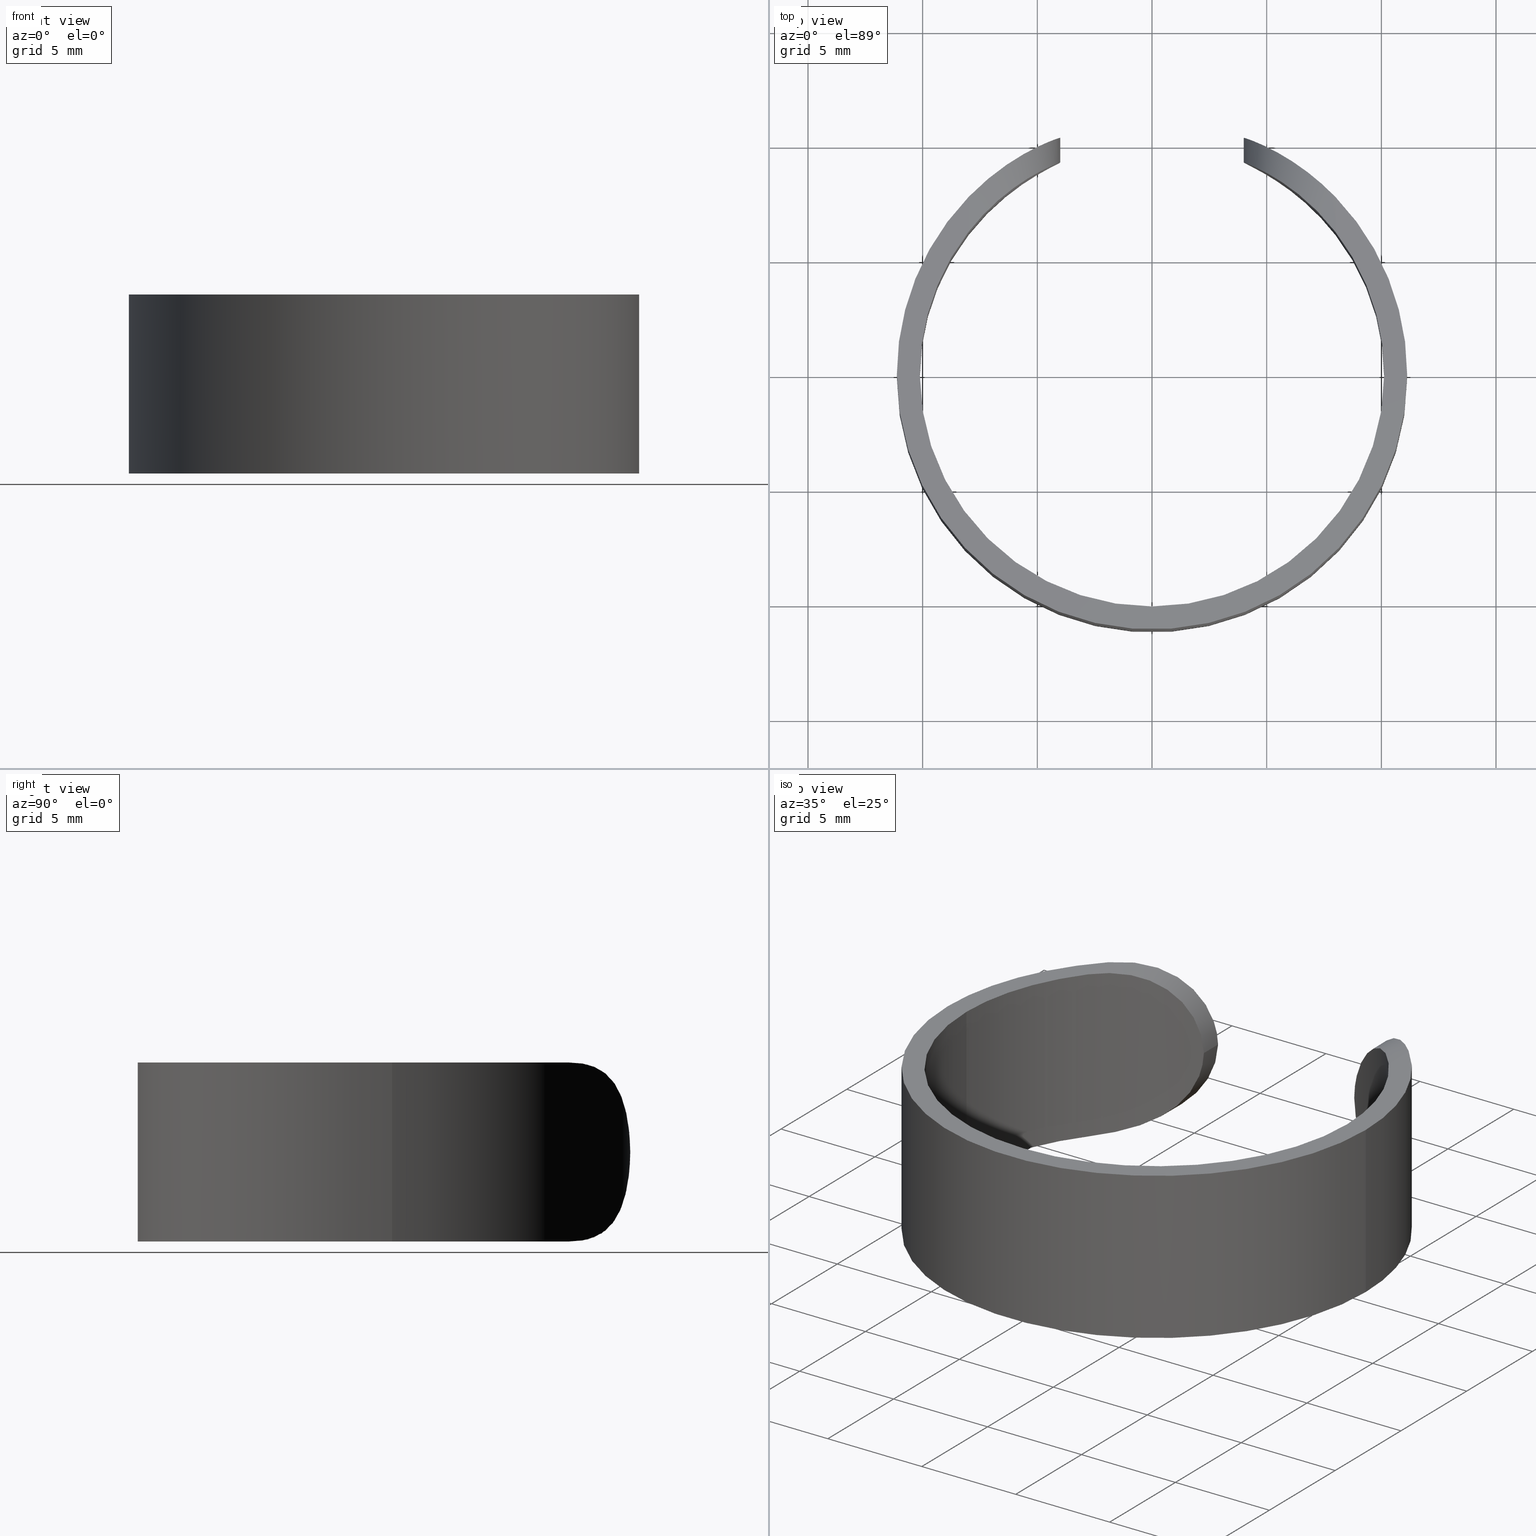
[diagram: canonical four-view strip — front | top / right | iso, engineering-drawing reading convention]
A machine part, canonical four-view strip (front | top / right | iso — engineering-drawing reading convention). The complete STEP part file that produces these views, byte-faithful:
ISO-10303-21;
HEADER;
FILE_DESCRIPTION (( 'STEP AP203' ),
    '1' );
FILE_NAME ('515004.STEP',
    '2019-09-26T07:36:46',
    ( '' ),
    ( '' ),
    'SwSTEP 2.0',
    'SolidWorks 2016',
    '' );
FILE_SCHEMA (( 'CONFIG_CONTROL_DESIGN' ));
ENDSEC;

DATA;
#1 = CC_DESIGN_PERSON_AND_ORGANIZATION_ASSIGNMENT ( #553, #156, ( #581 ) ) ;
#2 = APPROVAL_STATUS ( 'not_yet_approved' ) ;
#3 = DIRECTION ( 'NONE',  ( -8.033769701219899500E-016, 1.000000000000000000, 0.0000000000000000000 ) ) ;
#4 = CARTESIAN_POINT ( 'NONE',  ( 11.12500000000000000, 1.362419564051430300E-015, 7.799999999999999800 ) ) ;
#5 = EDGE_CURVE ( 'NONE', #54, #55, #590, .T. ) ;
#6 = VERTEX_POINT ( 'NONE', #142 ) ;
#7 = EDGE_LOOP ( 'NONE', ( #445, #454, #45, #204, #591 ) ) ;
#8 = CARTESIAN_POINT ( 'NONE',  ( -4.001250195373557100, 10.38054053862446600, 3.900000000000076700 ) ) ;
#9 = CARTESIAN_POINT ( 'NONE',  ( 0.0000000000000000000, 0.0000000000000000000, 7.799999999999999800 ) ) ;
#10 = CC_DESIGN_APPROVAL ( #311, ( #617 ) ) ;
#11 = APPROVAL_DATE_TIME ( #403, #311 ) ;
#12 = UNCERTAINTY_MEASURE_WITH_UNIT (LENGTH_MEASURE( 1.000000000000000100E-005 ), #473, 'distance_accuracy_value', 'NONE');
#13 = DIRECTION ( 'NONE',  ( 1.000000000000000000, 0.0000000000000000000, 0.0000000000000000000 ) ) ;
#14 = ORIENTED_EDGE ( 'NONE', *, *, #237, .T. ) ;
#15 = CARTESIAN_POINT ( 'NONE',  ( 0.0000000000000000000, 0.0000000000000000000, 0.0000000000000000000 ) ) ;
#16 = CARTESIAN_POINT ( 'NONE',  ( 4.001250195373559700, 9.300839847778425100, 3.899999999999998100 ) ) ;
#17 = DATE_AND_TIME ( #308, #290 ) ;
#18 = CARTESIAN_POINT ( 'NONE',  ( -6.276623606513959800, 9.189001011993795500, 0.3816190807649002000 ) ) ;
#19 = FACE_OUTER_BOUND ( 'NONE', #615, .T. ) ;
#20 = ORIENTED_EDGE ( 'NONE', *, *, #313, .F. ) ;
#21 = CARTESIAN_POINT ( 'NONE',  ( 7.815797301672330600, 6.443543238168709700, -2.879912020664621200E-017 ) ) ;
#22 = CC_DESIGN_PERSON_AND_ORGANIZATION_ASSIGNMENT ( #41, #307, ( #627 ) ) ;
#23 = CARTESIAN_POINT ( 'NONE',  ( 8.000000000000000000, 7.730823048033112600, 0.0000000000000000000 ) ) ;
#24 = EDGE_CURVE ( 'NONE', #573, #6, #172, .T. ) ;
#25 = CARTESIAN_POINT ( 'NONE',  ( 4.565672505174217300, 9.038348224417911000, 1.928768709548728000 ) ) ;
#26 = COORDINATED_UNIVERSAL_TIME_OFFSET ( 8, 0, .AHEAD. ) ;
#27 = DIRECTION ( 'NONE',  ( 1.000000000000000000, 8.033769701219899500E-016, 0.0000000000000000000 ) ) ;
#28 = CARTESIAN_POINT ( 'NONE',  ( 5.627252801659144800, 9.599729093109628400, 0.7685938398016604100 ) ) ;
#29 = PRODUCT_DEFINITION ( 'δ֪', '', #617, #349 ) ;
#30 = DIRECTION ( 'NONE',  ( 1.000000000000000000, 0.0000000000000000000, 0.0000000000000000000 ) ) ;
#31 = APPROVAL ( #105, 'δָ��' ) ;
#32 = PLANE ( 'NONE',  #610 ) ;
#33 = APPROVAL_PERSON_ORGANIZATION ( #148, #109, #388 ) ;
#34 = CYLINDRICAL_SURFACE ( 'NONE', #483, 11.12500000000000000 ) ;
#35 = VERTEX_POINT ( 'NONE', #208 ) ;
#36 = CARTESIAN_POINT ( 'NONE',  ( 4.008509415401781500, 10.37774242272197400, 4.190278046695688400 ) ) ;
#37 = CARTESIAN_POINT ( 'NONE',  ( 4.001250195373558900, 8.293559071075241800, 3.899999999999999900 ) ) ;
#38 = EDGE_CURVE ( 'NONE', #485, #72, #448, .T. ) ;
#39 = DIRECTION ( 'NONE',  ( -0.0000000000000000000, -0.0000000000000000000, -1.000000000000000000 ) ) ;
#40 = AXIS2_PLACEMENT_3D ( 'NONE', #558, #565, #27 ) ;
#41 = PERSON_AND_ORGANIZATION ( #394, #124 ) ;
#42 = PERSON_AND_ORGANIZATION_ROLE ( 'creator' ) ;
#43 = ORIENTED_EDGE ( 'NONE', *, *, #187, .F. ) ;
#44 = CARTESIAN_POINT ( 'NONE',  ( -5.916901258061794300, 8.220814913419124200, 7.223746396989543700 ) ) ;
#45 = ORIENTED_EDGE ( 'NONE', *, *, #226, .T. ) ;
#46 = ORIENTED_EDGE ( 'NONE', *, *, #82, .T. ) ;
#47 = MECHANICAL_CONTEXT ( 'NONE', #392, 'mechanical' ) ;
#48 = DIRECTION ( 'NONE',  ( -1.000000000000000000, 0.0000000000000000000, 0.0000000000000000000 ) ) ;
#49 = APPROVAL_STATUS ( 'not_yet_approved' ) ;
#50 = CARTESIAN_POINT ( 'NONE',  ( -4.001250195373557100, 10.38054053862446600, 3.900000000000076700 ) ) ;
#51 = DIRECTION ( 'NONE',  ( 1.000000000000000000, 0.0000000000000000000, 0.0000000000000000000 ) ) ;
#52 = APPROVAL_DATE_TIME ( #536, #566 ) ;
#53 = PERSON_AND_ORGANIZATION ( #394, #124 ) ;
#54 = VERTEX_POINT ( 'NONE', #106 ) ;
#55 = VERTEX_POINT ( 'NONE', #355 ) ;
#56 = DIRECTION ( 'NONE',  ( -0.0000000000000000000, -0.0000000000000000000, -1.000000000000000000 ) ) ;
#57 = DIRECTION ( 'NONE',  ( -0.0000000000000000000, -0.0000000000000000000, -1.000000000000000000 ) ) ;
#58 = CC_DESIGN_APPROVAL ( #31, ( #416 ) ) ;
#59 = CARTESIAN_POINT ( 'NONE',  ( 0.0000000000000000000, 0.0000000000000000000, 7.799999999999999800 ) ) ;
#60 = APPROVAL_DATE_TIME ( #68, #31 ) ;
#61 = CARTESIAN_POINT ( 'NONE',  ( 5.919382580235976300, 8.219010380731559100, 7.225211153489845600 ) ) ;
#62 = LINE ( 'NONE', #116, #97 ) ;
#63 = VERTEX_POINT ( 'NONE', #305 ) ;
#64 = ORIENTED_EDGE ( 'NONE', *, *, #119, .F. ) ;
#65 = CARTESIAN_POINT ( 'NONE',  ( -4.283673259212662300, 10.26811039051324700, 2.493776570852938200 ) ) ;
#66 = CC_DESIGN_PERSON_AND_ORGANIZATION_ASSIGNMENT ( #198, #42, ( #29 ) ) ;
#67 = DIRECTION ( 'NONE',  ( -0.0000000000000000000, -0.0000000000000000000, -1.000000000000000000 ) ) ;
#68 = DATE_AND_TIME ( #330, #218 ) ;
#69 = CIRCLE ( 'NONE', #636, 11.12500000000000000 ) ;
#70 = CARTESIAN_POINT ( 'NONE',  ( 0.0000000000000000000, 0.0000000000000000000, 7.799999999999999800 ) ) ;
#71 = AXIS2_PLACEMENT_3D ( 'NONE', #340, #39, #382 ) ;
#72 = VERTEX_POINT ( 'NONE', #633 ) ;
#73 = CARTESIAN_POINT ( 'NONE',  ( 4.008790584810824100, 9.297595948818459600, 4.201521307890643300 ) ) ;
#74 = EDGE_CURVE ( 'NONE', #493, #63, #141, .T. ) ;
#75 = CARTESIAN_POINT ( 'NONE',  ( 4.001250195373559700, 9.300839847778425100, 3.899999999999998100 ) ) ;
#76 = CARTESIAN_POINT ( 'NONE',  ( 5.217142879510171300, 9.828641459004009200, 1.114238179207921700 ) ) ;
#77 = COORDINATED_UNIVERSAL_TIME_OFFSET ( 8, 0, .AHEAD. ) ;
#78 = FACE_OUTER_BOUND ( 'NONE', #7, .T. ) ;
#79 = ORIENTED_EDGE ( 'NONE', *, *, #586, .F. ) ;
#80 = AXIS2_PLACEMENT_3D ( 'NONE', #15, #367, #498 ) ;
#81 = DIRECTION ( 'NONE',  ( -1.000000000000000000, 0.0000000000000000000, 0.0000000000000000000 ) ) ;
#82 = EDGE_CURVE ( 'NONE', #354, #493, #334, .T. ) ;
#83 = DIRECTION ( 'NONE',  ( -0.0000000000000000000, -0.0000000000000000000, -1.000000000000000000 ) ) ;
#84 = LOCAL_TIME ( 15, 36, 46.00000000000000000, #104 ) ;
#85 = ADVANCED_FACE ( 'NONE', ( #78 ), #250, .F. ) ;
#86 = CARTESIAN_POINT ( 'NONE',  ( -7.999999999999998200, 6.206095793653205700, 0.0000000000000000000 ) ) ;
#87 = ORIENTED_EDGE ( 'NONE', *, *, #155, .T. ) ;
#88 = CARTESIAN_POINT ( 'NONE',  ( -7.227798416163882000, 7.114393489978646700, 0.04915150761486868800 ) ) ;
#89 = ADVANCED_FACE ( 'NONE', ( #213 ), #235, .T. ) ;
#90 = CARTESIAN_POINT ( 'NONE',  ( 5.026643687882589100, 9.926469475605966200, 6.490007754328753500 ) ) ;
#91 = CARTESIAN_POINT ( 'NONE',  ( -4.159431567750726100, 9.231270712618281100, 4.927905870786189800 ) ) ;
#92 = ADVANCED_FACE ( 'NONE', ( #381 ), #326, .T. ) ;
#93 = AXIS2_PLACEMENT_3D ( 'NONE', #551, #169, #118 ) ;
#94 = CARTESIAN_POINT ( 'NONE',  ( -5.840785774799472000, 9.472006847375045200, 7.176447812892963200 ) ) ;
#95 = DIRECTION ( 'NONE',  ( -0.0000000000000000000, -0.0000000000000000000, -1.000000000000000000 ) ) ;
#96 = CALENDAR_DATE ( 2019, 26, 9 ) ;
#97 = VECTOR ( 'NONE', #362, 1000.000000000000000 ) ;
#98 = CARTESIAN_POINT ( 'NONE',  ( -5.919382580235975400, 8.219010380731557300, 0.5747888465101546100 ) ) ;
#99 = ORIENTED_EDGE ( 'NONE', *, *, #522, .F. ) ;
#100 = CARTESIAN_POINT ( 'NONE',  ( 0.0000000000000000000, 0.0000000000000000000, 0.0000000000000000000 ) ) ;
#101 = PRODUCT_DEFINITION_SHAPE ( 'NONE', 'NONE',  #581 ) ;
#102 = ADVANCED_FACE ( 'NONE', ( #580 ), #572, .T. ) ;
#103 = MECHANICAL_CONTEXT ( 'NONE', #538, 'mechanical' ) ;
#104 = COORDINATED_UNIVERSAL_TIME_OFFSET ( 8, 0, .AHEAD. ) ;
#105 = APPROVAL_STATUS ( 'not_yet_approved' ) ;
#106 = CARTESIAN_POINT ( 'NONE',  ( 10.12499999999999800, 1.239954884136695000E-015, 7.799999999999999800 ) ) ;
#107 = ORIENTED_EDGE ( 'NONE', *, *, #575, .T. ) ;
#108 = APPLICATION_PROTOCOL_DEFINITION ( 'international standard', 'config_control_design', 1994, #392 ) ;
#109 = APPROVAL ( #207, 'δָ��' ) ;
#110 = PERSON_AND_ORGANIZATION_ROLE ( 'design_supplier' ) ;
#111 = DIRECTION ( 'NONE',  ( 0.0000000000000000000, 0.0000000000000000000, 1.000000000000000000 ) ) ;
#112 = DIRECTION ( 'NONE',  ( 1.000000000000000000, 0.0000000000000000000, -0.0000000000000000000 ) ) ;
#113 = CIRCLE ( 'NONE', #139, 11.12500000000000000 ) ;
#114 = ORIENTED_EDGE ( 'NONE', *, *, #472, .F. ) ;
#115 = DIRECTION ( 'NONE',  ( -0.0000000000000000000, 1.000000000000000000, -0.0000000000000000000 ) ) ;
#116 = CARTESIAN_POINT ( 'NONE',  ( -8.000000000000000000, 10.38102234849727700, 7.799999999999999800 ) ) ;
#117 = CC_DESIGN_PERSON_AND_ORGANIZATION_ASSIGNMENT ( #53, #393, ( #589 ) ) ;
#118 = DIRECTION ( 'NONE',  ( 1.000000000000000000, 0.0000000000000000000, 0.0000000000000000000 ) ) ;
#119 = EDGE_CURVE ( 'NONE', #637, #404, #69, .T. ) ;
#120 = SHAPE_DEFINITION_REPRESENTATION ( #562, #320 ) ;
#121 = ORIENTED_EDGE ( 'NONE', *, *, #82, .F. ) ;
#122 = ORIENTED_EDGE ( 'NONE', *, *, #487, .F. ) ;
#123 = CARTESIAN_POINT ( 'NONE',  ( -5.026643687882530500, 9.926469475606001700, 1.309992245671312000 ) ) ;
#124 = ORGANIZATION ( 'δָ��', 'δָ��', '' ) ;
#125 = EDGE_LOOP ( 'NONE', ( #344, #433, #440, #14, #537, #87, #221, #516 ) ) ;
#126 = DIRECTION ( 'NONE',  ( 8.033769701219899500E-016, -1.000000000000000000, -0.0000000000000000000 ) ) ;
#127 = AXIS2_PLACEMENT_3D ( 'NONE', #241, #83, #368 ) ;
#128 = CARTESIAN_POINT ( 'NONE',  ( 5.028166002111222900, 9.925670074801539400, 1.308577872979077600 ) ) ;
#129 = CARTESIAN_POINT ( 'NONE',  ( 5.840785774799425800, 9.472006847375073600, 0.6235521871070643900 ) ) ;
#130 = MANIFOLD_SOLID_BREP ( 'Բ��1', #418 ) ;
#131 = COORDINATED_UNIVERSAL_TIME_OFFSET ( 8, 0, .AHEAD. ) ;
#132 = CYLINDRICAL_SURFACE ( 'NONE', #517, 11.12500000000000000 ) ;
#133 = ORIENTED_EDGE ( 'NONE', *, *, #237, .F. ) ;
#134 = VERTEX_POINT ( 'NONE', #543 ) ;
#135 = CARTESIAN_POINT ( 'NONE',  ( 4.308830892505967300, 9.162581688671776800, 2.451726205542819900 ) ) ;
#136 = ADVANCED_FACE ( 'NONE', ( #431 ), #561, .F. ) ;
#137 = CARTESIAN_POINT ( 'NONE',  ( -4.001250195373558000, 9.300839847778426900, 3.899999999999997200 ) ) ;
#138 = CARTESIAN_POINT ( 'NONE',  ( 10.12499999999999800, 1.239954884136695000E-015, 7.799999999999999800 ) ) ;
#139 = AXIS2_PLACEMENT_3D ( 'NONE', #406, #321, #13 ) ;
#140 = CARTESIAN_POINT ( 'NONE',  ( -5.701258363416674700, 8.370991384762199100, 0.7154664408517542600 ) ) ;
#141 = CIRCLE ( 'NONE', #215, 10.12499999999999800 ) ;
#142 = CARTESIAN_POINT ( 'NONE',  ( -7.999999999999996400, 6.206095793653207500, 7.799999999999999800 ) ) ;
#143 = CARTESIAN_POINT ( 'NONE',  ( 5.215562959815326100, 9.829430072311772900, 6.684043364736873500 ) ) ;
#144 = CARTESIAN_POINT ( 'NONE',  ( 8.000000000000000000, 10.38102234849728100, 4.000000000000000000 ) ) ;
#145 = CARTESIAN_POINT ( 'NONE',  ( -7.008667805379441300, 7.312893272198249600, 7.681776929039928700 ) ) ;
#146 = AXIS2_PLACEMENT_3D ( 'NONE', #281, #619, #415 ) ;
#147 = SECURITY_CLASSIFICATION_LEVEL ( 'unclassified' ) ;
#148 = PERSON_AND_ORGANIZATION ( #394, #124 ) ;
#149 = PERSON_AND_ORGANIZATION ( #394, #124 ) ;
#150 = ORIENTED_EDGE ( 'NONE', *, *, #187, .T. ) ;
#151 = DIRECTION ( 'NONE',  ( 1.000000000000000000, 0.0000000000000000000, 0.0000000000000000000 ) ) ;
#152 = VERTEX_POINT ( 'NONE', #8 ) ;
#153 = CARTESIAN_POINT ( 'NONE',  ( -6.578328444203196800, 7.702300130280032200, 7.545635010830095800 ) ) ;
#154 = DESIGN_CONTEXT ( 'detailed design', #432, 'design' ) ;
#155 = EDGE_CURVE ( 'NONE', #54, #354, #176, .T. ) ;
#156 = PERSON_AND_ORGANIZATION_ROLE ( 'creator' ) ;
#157 = DATE_TIME_ROLE ( 'creation_date' ) ;
#158 = CARTESIAN_POINT ( 'NONE',  ( 5.086537306542194200, 8.756952909420581600, 6.555087516793129500 ) ) ;
#159 = PERSON_AND_ORGANIZATION ( #394, #124 ) ;
#160 = APPROVAL_ROLE ( '' ) ;
#161 = CIRCLE ( 'NONE', #347, 10.12499999999999800 ) ;
#162 = ORIENTED_EDGE ( 'NONE', *, *, #38, .T. ) ;
#163 = AXIS2_PLACEMENT_3D ( 'NONE', #144, #470, #482 ) ;
#164 = CARTESIAN_POINT ( 'NONE',  ( 7.227798416163886400, 7.114393489978648500, 7.750848492385133100 ) ) ;
#165 = DIRECTION ( 'NONE',  ( -0.0000000000000000000, -0.0000000000000000000, -1.000000000000000000 ) ) ;
#166 = APPROVAL_PERSON_ORGANIZATION ( #620, #566, #525 ) ;
#167 = ORIENTED_EDGE ( 'NONE', *, *, #203, .T. ) ;
#168 = CARTESIAN_POINT ( 'NONE',  ( -5.622090501069597400, 9.602702272383940100, 0.7725641485334301400 ) ) ;
#169 = DIRECTION ( 'NONE',  ( 0.0000000000000000000, 0.0000000000000000000, 1.000000000000000000 ) ) ;
#170 = CARTESIAN_POINT ( 'NONE',  ( -4.532237980768703000, 10.16084477143202000, 1.986440951752483700 ) ) ;
#171 = COORDINATED_UNIVERSAL_TIME_OFFSET ( 8, 0, .AHEAD. ) ;
#172 = B_SPLINE_CURVE_WITH_KNOTS ( 'NONE', 3,
 ( #626, #339, #379, #91, #296, #465, #520, #247, #640, #390, #206, #300, #44, #386, #153, #145, #585, #527, #256, #201 ),
 .UNSPECIFIED., .F., .F.,
 ( 4, 2, 2, 2, 2, 2, 2, 2, 2, 4 ),
 ( 9.880161927173211100E-005, 0.0009922241704492529000, 0.001438935446038013700, 0.001885646721626774500, 0.002779069272804298100, 0.003672491823981821500, 0.004565914375159345300, 0.005459336926336869600, 0.006352759477514394700, 0.007246182028691920700 ),
 .UNSPECIFIED. ) ;
#173 = CARTESIAN_POINT ( 'NONE',  ( -4.046888289149049600, 10.36309599771423600, 3.325127572760569400 ) ) ;
#174 = EDGE_CURVE ( 'NONE', #6, #637, #62, .T. ) ;
#175 = CIRCLE ( 'NONE', #80, 11.12500000000000000 ) ;
#176 = CIRCLE ( 'NONE', #282, 10.12499999999999800 ) ;
#177 = VERTEX_POINT ( 'NONE', #314 ) ;
#178 = CARTESIAN_POINT ( 'NONE',  ( 4.198749070276265100, 9.213726947612437700, 5.080962103234990800 ) ) ;
#179 = DIRECTION ( 'NONE',  ( 0.0000000000000000000, 0.0000000000000000000, 1.000000000000000000 ) ) ;
#180 = CARTESIAN_POINT ( 'NONE',  ( 4.773003964334876900, 10.04952719540044200, 1.632430744411491400 ) ) ;
#181 = ORIENTED_EDGE ( 'NONE', *, *, #226, .F. ) ;
#182 = CARTESIAN_POINT ( 'NONE',  ( 7.620885438308254000, 6.672744582655003100, 0.01279559811741327400 ) ) ;
#183 = CC_DESIGN_PERSON_AND_ORGANIZATION_ASSIGNMENT ( #422, #435, ( #617 ) ) ;
#184 = ORIENTED_EDGE ( 'NONE', *, *, #631, .F. ) ;
#185 = CARTESIAN_POINT ( 'NONE',  ( 6.355170468924960400, 7.886908560979494900, 0.3454308635261984000 ) ) ;
#186 = ADVANCED_FACE ( 'NONE', ( #192 ), #417, .F. ) ;
#187 = EDGE_CURVE ( 'NONE', #202, #231, #599, .T. ) ;
#188 = CARTESIAN_POINT ( 'NONE',  ( 7.008667805379442200, 7.312893272198247800, 0.1182230709600730300 ) ) ;
#189 = CARTESIAN_POINT ( 'NONE',  ( 4.183917640690046000, 10.30853513641075200, 5.032907303278858700 ) ) ;
#190 = PERSON_AND_ORGANIZATION ( #394, #124 ) ;
#191 = CALENDAR_DATE ( 2019, 26, 9 ) ;
#192 = FACE_OUTER_BOUND ( 'NONE', #343, .T. ) ;
#193 = CARTESIAN_POINT ( 'NONE',  ( -4.568240781612600700, 9.037061119902722000, 1.924425472663032300 ) ) ;
#194 = ADVANCED_FACE ( 'NONE', ( #554 ), #401, .F. ) ;
#195 = DIRECTION ( 'NONE',  ( 1.000000000000000000, 0.0000000000000000000, -0.0000000000000000000 ) ) ;
#196 = AXIS2_PLACEMENT_3D ( 'NONE', #402, #602, #112 ) ;
#197 = CARTESIAN_POINT ( 'NONE',  ( 4.683710545691555500, 10.09280924912606600, 6.053711102248882100 ) ) ;
#198 = PERSON_AND_ORGANIZATION ( #394, #124 ) ;
#199 = CARTESIAN_POINT ( 'NONE',  ( -7.999999999999998200, 7.730823048033115300, 7.799999999999999800 ) ) ;
#200 = ORIENTED_EDGE ( 'NONE', *, *, #586, .T. ) ;
#201 = CARTESIAN_POINT ( 'NONE',  ( -7.999999999999996400, 6.206095793653207500, 7.799999999999999800 ) ) ;
#202 = VERTEX_POINT ( 'NONE', #480 ) ;
#203 = EDGE_CURVE ( 'NONE', #555, #177, #302, .T. ) ;
#204 = ORIENTED_EDGE ( 'NONE', *, *, #453, .T. ) ;
#205 = DATE_TIME_ROLE ( 'creation_date' ) ;
#206 = CARTESIAN_POINT ( 'NONE',  ( -5.280293115881816500, 8.642706744832672400, 6.745452536255834600 ) ) ;
#207 = APPROVAL_STATUS ( 'not_yet_approved' ) ;
#208 = CARTESIAN_POINT ( 'NONE',  ( 8.000000000000000000, 6.206095793653203100, 7.799999999999999800 ) ) ;
#209 = PERSON_AND_ORGANIZATION_ROLE ( 'classification_officer' ) ;
#210 = CARTESIAN_POINT ( 'NONE',  ( 0.0000000000000000000, 0.0000000000000000000, 7.799999999999999800 ) ) ;
#211 = PERSON_AND_ORGANIZATION ( #394, #124 ) ;
#212 = VECTOR ( 'NONE', #126, 1000.000000000000000 ) ;
#213 = FACE_OUTER_BOUND ( 'NONE', #318, .T. ) ;
#214 = CARTESIAN_POINT ( 'NONE',  ( -4.047803546566052000, 10.36274536119001900, 4.480841623251954800 ) ) ;
#215 = AXIS2_PLACEMENT_3D ( 'NONE', #252, #95, #428 ) ;
#216 = PERSON_AND_ORGANIZATION_ROLE ( 'design_owner' ) ;
#217 = DIRECTION ( 'NONE',  ( -1.000000000000000000, 0.0000000000000000000, 0.0000000000000000000 ) ) ;
#218 = LOCAL_TIME ( 15, 36, 46.00000000000000000, #475 ) ;
#219 = CARTESIAN_POINT ( 'NONE',  ( 8.000000000000000000, 0.0000000000000000000, 3.799999999999999400 ) ) ;
#220 = EDGE_LOOP ( 'NONE', ( #621, #114, #424, #266 ) ) ;
#221 = ORIENTED_EDGE ( 'NONE', *, *, #443, .T. ) ;
#222 = PRODUCT ( '515004', '515004', '', ( #103 ) ) ;
#223 = CARTESIAN_POINT ( 'NONE',  ( 5.701258363416676500, 8.370991384762202600, 7.084533559148247200 ) ) ;
#224 = CARTESIAN_POINT ( 'NONE',  ( -4.183917640690002500, 10.30853513641077200, 2.767092696721270300 ) ) ;
#225 = CARTESIAN_POINT ( 'NONE',  ( -5.215562959815268400, 9.829430072311806700, 1.115956635263181800 ) ) ;
#226 = EDGE_CURVE ( 'NONE', #35, #485, #481, .T. ) ;
#227 = CALENDAR_DATE ( 2019, 26, 9 ) ;
#228 = LINE ( 'NONE', #509, #212 ) ;
#229 = ORIENTED_EDGE ( 'NONE', *, *, #575, .F. ) ;
#230 = DIRECTION ( 'NONE',  ( 1.000000000000000000, 0.0000000000000000000, 0.0000000000000000000 ) ) ;
#231 = VERTEX_POINT ( 'NONE', #494 ) ;
#232 = CARTESIAN_POINT ( 'NONE',  ( 5.916901258061797900, 8.220814913419120600, 0.5762536030104558100 ) ) ;
#233 = CC_DESIGN_DATE_AND_TIME_ASSIGNMENT ( #350, #534, ( #627 ) ) ;
#234 = LINE ( 'NONE', #299, #613 ) ;
#235 = CYLINDRICAL_SURFACE ( 'NONE', #163, 4.000000000000000000 ) ;
#236 = CARTESIAN_POINT ( 'NONE',  ( 4.692642961623963800, 10.08719781645910500, 1.745839078344228600 ) ) ;
#237 = EDGE_CURVE ( 'NONE', #134, #35, #248, .T. ) ;
#238 = CARTESIAN_POINT ( 'NONE',  ( 7.596791848386501100, 8.148070369937434200, -7.623296525288703100E-018 ) ) ;
#239 = CARTESIAN_POINT ( 'NONE',  ( 4.001250195373561500, 10.38054053862432500, 3.900000000000077600 ) ) ;
#240 = FACE_OUTER_BOUND ( 'NONE', #125, .T. ) ;
#241 = CARTESIAN_POINT ( 'NONE',  ( 0.0000000000000000000, 0.0000000000000000000, 7.799999999999999800 ) ) ;
#242 = ORIENTED_EDGE ( 'NONE', *, *, #472, .T. ) ;
#243 = CARTESIAN_POINT ( 'NONE',  ( 4.532237980768758900, 10.16084477143199500, 5.813559048247612700 ) ) ;
#244 = CC_DESIGN_APPROVAL ( #109, ( #29 ) ) ;
#245 = CARTESIAN_POINT ( 'NONE',  ( -6.356711401953806900, 7.885647844156165900, 0.3447786829046706700 ) ) ;
#246 = CARTESIAN_POINT ( 'NONE',  ( -7.596791848386507300, 8.148070369937428800, 7.800000000000000700 ) ) ;
#247 = CARTESIAN_POINT ( 'NONE',  ( -4.565672505174214600, 9.038348224417907400, 5.871231290451265600 ) ) ;
#248 = LINE ( 'NONE', #541, #365 ) ;
#249 = EDGE_CURVE ( 'NONE', #152, #539, #358, .T. ) ;
#250 = CYLINDRICAL_SURFACE ( 'NONE', #596, 10.12499999999999800 ) ;
#251 = CARTESIAN_POINT ( 'NONE',  ( 0.0000000000000000000, 0.0000000000000000000, 7.799999999999999800 ) ) ;
#252 = CARTESIAN_POINT ( 'NONE',  ( 0.0000000000000000000, 0.0000000000000000000, 0.0000000000000000000 ) ) ;
#253 = CARTESIAN_POINT ( 'NONE',  ( 6.276623606514001500, 9.189001011993763500, 7.418380919235120000 ) ) ;
#254 = CC_DESIGN_PERSON_AND_ORGANIZATION_ASSIGNMENT ( #410, #638, ( #617 ) ) ;
#255 = CARTESIAN_POINT ( 'NONE',  ( -5.028166002111277100, 9.925670074801511000, 6.491422127020981300 ) ) ;
#256 = CARTESIAN_POINT ( 'NONE',  ( -7.815797301672327000, 6.443543238168709700, 7.799999999999999800 ) ) ;
#257 = DIRECTION ( 'NONE',  ( 1.000000000000000000, 0.0000000000000000000, 0.0000000000000000000 ) ) ;
#258 = EDGE_CURVE ( 'NONE', #202, #55, #161, .T. ) ;
#259 = ORIENTED_EDGE ( 'NONE', *, *, #5, .T. ) ;
#260 = APPROVAL_STATUS ( 'not_yet_approved' ) ;
#261 = CARTESIAN_POINT ( 'NONE',  ( -5.627252801659191800, 9.599729093109600000, 7.031406160198375100 ) ) ;
#262 = DIRECTION ( 'NONE',  ( 0.0000000000000000000, 0.0000000000000000000, 1.000000000000000000 ) ) ;
#263 = APPLICATION_PROTOCOL_DEFINITION ( 'international standard', 'config_control_design', 1994, #538 ) ;
#264 = DIRECTION ( 'NONE',  ( -0.0000000000000000000, 1.000000000000000000, 0.0000000000000000000 ) ) ;
#265 = APPROVAL_DATE_TIME ( #380, #384 ) ;
#266 = ORIENTED_EDGE ( 'NONE', *, *, #269, .T. ) ;
#267 = CC_DESIGN_APPROVAL ( #566, ( #627 ) ) ;
#268 = CARTESIAN_POINT ( 'NONE',  ( 6.356711401953806000, 7.885647844156164200, 7.455221317095326800 ) ) ;
#269 = EDGE_CURVE ( 'NONE', #152, #573, #276, .T. ) ;
#270 = LOCAL_TIME ( 15, 36, 46.00000000000000000, #77 ) ;
#271 = CARTESIAN_POINT ( 'NONE',  ( 4.001250195373559700, 9.300839847778425100, 3.899999999999998100 ) ) ;
#272 = EDGE_LOOP ( 'NONE', ( #547, #167, #310, #600, #107 ) ) ;
#273 = DIRECTION ( 'NONE',  ( 8.033769701219899500E-016, -1.000000000000000000, 0.0000000000000000000 ) ) ;
#274 = CC_DESIGN_PERSON_AND_ORGANIZATION_ASSIGNMENT ( #570, #216, ( #222 ) ) ;
#275 = LOCAL_TIME ( 15, 36, 46.00000000000000000, #26 ) ;
#276 = LINE ( 'NONE', #278, #607 ) ;
#277 = ORIENTED_EDGE ( 'NONE', *, *, #24, .F. ) ;
#278 = CARTESIAN_POINT ( 'NONE',  ( -4.001250195373557100, 8.293559071075245400, 3.899999999999999900 ) ) ;
#279 = EDGE_CURVE ( 'NONE', #404, #555, #460, .T. ) ;
#280 = CARTESIAN_POINT ( 'NONE',  ( 0.0000000000000000000, 0.0000000000000000000, 7.799999999999999800 ) ) ;
#281 = CARTESIAN_POINT ( 'NONE',  ( 0.0000000000000000000, 0.0000000000000000000, 0.0000000000000000000 ) ) ;
#282 = AXIS2_PLACEMENT_3D ( 'NONE', #59, #57, #395 ) ;
#283 = DATE_AND_TIME ( #430, #579 ) ;
#284 = CIRCLE ( 'NONE', #426, 11.12500000000000000 ) ;
#285 = CARTESIAN_POINT ( 'NONE',  ( 0.0000000000000000000, 0.0000000000000000000, 7.799999999999999800 ) ) ;
#286 = EDGE_CURVE ( 'NONE', #177, #231, #175, .T. ) ;
#287 = CARTESIAN_POINT ( 'NONE',  ( 7.217641228604097000, 7.106973351879466000, 0.07196721677396238100 ) ) ;
#288 = ADVANCED_FACE ( 'NONE', ( #292 ), #34, .T. ) ;
#289 = CARTESIAN_POINT ( 'NONE',  ( 8.000000000000000000, 7.730823048033112600, 7.799999999999999800 ) ) ;
#290 = LOCAL_TIME ( 15, 36, 46.00000000000000000, #605 ) ;
#291 = ADVANCED_FACE ( 'NONE', ( #499 ), #341, .T. ) ;
#292 = FACE_OUTER_BOUND ( 'NONE', #272, .T. ) ;
#293 = CARTESIAN_POINT ( 'NONE',  ( 11.12500000000000000, 1.362419564051430300E-015, 7.799999999999999800 ) ) ;
#294 = APPROVAL ( #260, 'δָ��' ) ;
#295 = CARTESIAN_POINT ( 'NONE',  ( -6.504876999262192400, 9.029378816659026100, 7.517432757502495700 ) ) ;
#296 = CARTESIAN_POINT ( 'NONE',  ( -4.204556946386481400, 9.210897228087516100, 5.071413838802312700 ) ) ;
#297 = CC_DESIGN_SECURITY_CLASSIFICATION ( #627, ( #416 ) ) ;
#298 = CARTESIAN_POINT ( 'NONE',  ( 4.001250195373561500, 10.38054053862432500, 3.900000000000077600 ) ) ;
#299 = CARTESIAN_POINT ( 'NONE',  ( -11.12500000000000000, 0.0000000000000000000, 7.799999999999999800 ) ) ;
#300 = CARTESIAN_POINT ( 'NONE',  ( -5.699572633629093100, 8.372141127620301000, 7.083371759473420700 ) ) ;
#301 = CALENDAR_DATE ( 2019, 26, 9 ) ;
#302 = LINE ( 'NONE', #4, #526 ) ;
#303 = CARTESIAN_POINT ( 'NONE',  ( -5.217142879510224600, 9.828641459003979000, 6.685761820792132300 ) ) ;
#304 = VERTEX_POINT ( 'NONE', #446 ) ;
#305 = CARTESIAN_POINT ( 'NONE',  ( -7.999999999999998200, 6.206095793653205700, 0.0000000000000000000 ) ) ;
#306 = PERSON_AND_ORGANIZATION_ROLE ( 'creator' ) ;
#307 = PERSON_AND_ORGANIZATION_ROLE ( 'classification_officer' ) ;
#308 = CALENDAR_DATE ( 2019, 26, 9 ) ;
#309 =( NAMED_UNIT ( * ) PLANE_ANGLE_UNIT ( ) SI_UNIT ( $, .RADIAN. ) );
#310 = ORIENTED_EDGE ( 'NONE', *, *, #286, .T. ) ;
#311 = APPROVAL ( #594, 'δָ��' ) ;
#312 = DIRECTION ( 'NONE',  ( -1.000000000000000000, 0.0000000000000000000, 0.0000000000000000000 ) ) ;
#313 = EDGE_CURVE ( 'NONE', #304, #177, #113, .T. ) ;
#314 = CARTESIAN_POINT ( 'NONE',  ( 11.12500000000000000, 1.362419564051430300E-015, 0.0000000000000000000 ) ) ;
#315 = PERSON_AND_ORGANIZATION ( #394, #124 ) ;
#316 = ORIENTED_EDGE ( 'NONE', *, *, #38, .F. ) ;
#317 = B_SPLINE_CURVE_WITH_KNOTS ( 'NONE', 3,
 ( #23, #238, #504, #457, #455, #129, #28, #76, #128, #180, #236, #559, #331, #372, #564, #507, #618, #239 ),
 .UNSPECIFIED., .F., .F.,
 ( 4, 2, 2, 2, 2, 2, 2, 2, 4 ),
 ( 0.0000000000000000000, 0.001714558512397795300, 0.002571837768596695800, 0.003429117024795596300, 0.004286396280994495500, 0.004715035909093946200, 0.005143675537193396000, 0.006000954793392295600, 0.006858234049591197000 ),
 .UNSPECIFIED. ) ;
#318 = EDGE_LOOP ( 'NONE', ( #122, #43, #508, #162 ) ) ;
#319 =( GEOMETRIC_REPRESENTATION_CONTEXT ( 3 ) GLOBAL_UNCERTAINTY_ASSIGNED_CONTEXT ( ( #12 ) ) GLOBAL_UNIT_ASSIGNED_CONTEXT ( ( #473, #309, #345 ) ) REPRESENTATION_CONTEXT ( 'NONE', 'WORKASPACE' ) );
#320 = ADVANCED_BREP_SHAPE_REPRESENTATION ( '515004', ( #130, #529 ), #319 ) ;
#321 = DIRECTION ( 'NONE',  ( 0.0000000000000000000, 0.0000000000000000000, 1.000000000000000000 ) ) ;
#322 = CARTESIAN_POINT ( 'NONE',  ( 0.0000000000000000000, 0.0000000000000000000, 7.799999999999999800 ) ) ;
#323 = CALENDAR_DATE ( 2019, 26, 9 ) ;
#324 = CARTESIAN_POINT ( 'NONE',  ( -6.501887589211032800, 9.031561767834963600, 0.2837137121530283200 ) ) ;
#325 = LOCAL_TIME ( 15, 36, 46.00000000000000000, #437 ) ;
#326 = CYLINDRICAL_SURFACE ( 'NONE', #503, 4.000000000000000000 ) ;
#327 = ORIENTED_EDGE ( 'NONE', *, *, #411, .F. ) ;
#328 = DIRECTION ( 'NONE',  ( -1.000000000000000000, 0.0000000000000000000, 0.0000000000000000000 ) ) ;
#329 = CC_DESIGN_SECURITY_CLASSIFICATION ( #357, ( #617 ) ) ;
#330 = CALENDAR_DATE ( 2019, 26, 9 ) ;
#331 = CARTESIAN_POINT ( 'NONE',  ( 4.472305816383870300, 10.18669463662708800, 2.109100225319402400 ) ) ;
#332 = CARTESIAN_POINT ( 'NONE',  ( 4.204556946386483100, 9.210897228087510800, 2.728586161197684900 ) ) ;
#333 = APPROVAL_PERSON_ORGANIZATION ( #506, #384, #587 ) ;
#334 = LINE ( 'NONE', #532, #500 ) ;
#335 = ORIENTED_EDGE ( 'NONE', *, *, #631, .T. ) ;
#336 = DIRECTION ( 'NONE',  ( -0.0000000000000000000, -0.0000000000000000000, -1.000000000000000000 ) ) ;
#337 = CC_DESIGN_PERSON_AND_ORGANIZATION_ASSIGNMENT ( #190, #110, ( #416 ) ) ;
#338 = CARTESIAN_POINT ( 'NONE',  ( -5.086537306542195000, 8.756952909420586900, 1.244912483206867600 ) ) ;
#339 = CARTESIAN_POINT ( 'NONE',  ( -4.008770596894035700, 9.297604547682352600, 4.200722041107201900 ) ) ;
#340 = CARTESIAN_POINT ( 'NONE',  ( 0.0000000000000000000, 0.0000000000000000000, 0.0000000000000000000 ) ) ;
#341 = CYLINDRICAL_SURFACE ( 'NONE', #397, 11.12500000000000000 ) ;
#342 = CARTESIAN_POINT ( 'NONE',  ( -4.049988818232482600, 9.280078048836511300, 3.301584504351906500 ) ) ;
#343 = EDGE_LOOP ( 'NONE', ( #629, #46, #461, #425, #528 ) ) ;
#344 = ORIENTED_EDGE ( 'NONE', *, *, #119, .T. ) ;
#345 =( NAMED_UNIT ( * ) SI_UNIT ( $, .STERADIAN. ) SOLID_ANGLE_UNIT ( ) );
#346 = DIRECTION ( 'NONE',  ( -0.0000000000000000000, 1.000000000000000000, 0.0000000000000000000 ) ) ;
#347 = AXIS2_PLACEMENT_3D ( 'NONE', #612, #67, #230 ) ;
#348 = APPROVAL_ROLE ( '' ) ;
#349 = DESIGN_CONTEXT ( 'detailed design', #531, 'design' ) ;
#350 = DATE_AND_TIME ( #227, #387 ) ;
#351 = FACE_OUTER_BOUND ( 'NONE', #601, .T. ) ;
#352 = ORIENTED_EDGE ( 'NONE', *, *, #313, .T. ) ;
#353 = CARTESIAN_POINT ( 'NONE',  ( -4.008529313447085400, 10.37773475288474500, 4.191073719743564600 ) ) ;
#354 = VERTEX_POINT ( 'NONE', #550 ) ;
#355 = CARTESIAN_POINT ( 'NONE',  ( 10.12499999999999800, 1.239954884136695000E-015, 0.0000000000000000000 ) ) ;
#356 = CARTESIAN_POINT ( 'NONE',  ( 0.0000000000000000000, 0.0000000000000000000, 7.799999999999999800 ) ) ;
#357 = SECURITY_CLASSIFICATION ( '', '', #391 ) ;
#358 = B_SPLINE_CURVE_WITH_KNOTS ( 'NONE', 3,
 ( #535, #409, #173, #224, #65, #170, #611, #123, #225, #168, #496, #18, #324, #366, #548, #497 ),
 .UNSPECIFIED., .F., .F.,
 ( 4, 2, 2, 2, 2, 2, 2, 4 ),
 ( 9.879956830773295900E-005, 0.0009611438505432933700, 0.001823488132778853700, 0.002685832415014414300, 0.003548176697249974400, 0.004410520979485533700, 0.005272865261721095200, 0.006997553826192219800 ),
 .UNSPECIFIED. ) ;
#359 = VECTOR ( 'NONE', #346, 1000.000000000000000 ) ;
#360 = CC_DESIGN_DATE_AND_TIME_ASSIGNMENT ( #283, #157, ( #29 ) ) ;
#361 = ORIENTED_EDGE ( 'NONE', *, *, #74, .F. ) ;
#362 = DIRECTION ( 'NONE',  ( -8.033769701219899500E-016, 1.000000000000000000, 0.0000000000000000000 ) ) ;
#363 = B_SPLINE_CURVE_WITH_KNOTS ( 'NONE', 3,
 ( #199, #246, #582, #295, #628, #94, #261, #303, #255, #385, #584, #530, #476, #471, #641, #214, #353, #50 ),
 .UNSPECIFIED., .F., .F.,
 ( 4, 2, 2, 2, 2, 2, 2, 2, 4 ),
 ( 0.0000000000000000000, 0.001714558512397759300, 0.002571837768596640300, 0.003429117024795521700, 0.004286396280994402700, 0.004715035909093843800, 0.005143675537193285800, 0.006000954793392167300, 0.006858234049591049500 ),
 .UNSPECIFIED. ) ;
#364 = DIRECTION ( 'NONE',  ( 0.0000000000000000000, -1.000000000000000000, 0.0000000000000000000 ) ) ;
#365 = VECTOR ( 'NONE', #364, 1000.000000000000000 ) ;
#366 = CARTESIAN_POINT ( 'NONE',  ( -7.169471451739822100, 8.525045739379130800, 0.05909647353271394600 ) ) ;
#367 = DIRECTION ( 'NONE',  ( 0.0000000000000000000, 0.0000000000000000000, 1.000000000000000000 ) ) ;
#368 = DIRECTION ( 'NONE',  ( 1.000000000000000000, 0.0000000000000000000, 0.0000000000000000000 ) ) ;
#369 = VECTOR ( 'NONE', #115, 1000.000000000000000 ) ;
#370 = EDGE_LOOP ( 'NONE', ( #399, #150, #563, #20, #327, #242, #361, #79 ) ) ;
#371 = DIRECTION ( 'NONE',  ( -0.0000000000000000000, -0.0000000000000000000, -1.000000000000000000 ) ) ;
#372 = CARTESIAN_POINT ( 'NONE',  ( 4.284653511208659000, 10.26771333011783900, 2.491121836512083700 ) ) ;
#373 = CARTESIAN_POINT ( 'NONE',  ( -10.12499999999999800, 0.0000000000000000000, 0.0000000000000000000 ) ) ;
#374 = AXIS2_PLACEMENT_3D ( 'NONE', #356, #56, #217 ) ;
#375 = EDGE_LOOP ( 'NONE', ( #608, #259, #200, #121 ) ) ;
#376 = DIRECTION ( 'NONE',  ( -0.0000000000000000000, -0.0000000000000000000, -1.000000000000000000 ) ) ;
#377 = EDGE_CURVE ( 'NONE', #555, #134, #284, .T. ) ;
#378 = CARTESIAN_POINT ( 'NONE',  ( 4.283673259212711100, 10.26811039051322700, 5.306223429147178400 ) ) ;
#379 = CARTESIAN_POINT ( 'NONE',  ( -4.049661632499908000, 9.280209340744386600, 4.495253138670401300 ) ) ;
#380 = DATE_AND_TIME ( #191, #325 ) ;
#381 = FACE_OUTER_BOUND ( 'NONE', #220, .T. ) ;
#382 = DIRECTION ( 'NONE',  ( 1.000000000000000000, 0.0000000000000000000, 0.0000000000000000000 ) ) ;
#383 = DIRECTION ( 'NONE',  ( -0.0000000000000000000, -0.0000000000000000000, -1.000000000000000000 ) ) ;
#384 = APPROVAL ( #49, 'δָ��' ) ;
#385 = CARTESIAN_POINT ( 'NONE',  ( -4.773003964334929300, 10.04952719540041500, 6.167569255588581700 ) ) ;
#386 = CARTESIAN_POINT ( 'NONE',  ( -6.355170468924957700, 7.886908560979496700, 7.454569136473801400 ) ) ;
#387 = LOCAL_TIME ( 15, 36, 46.00000000000000000, #560 ) ;
#388 = APPROVAL_ROLE ( '' ) ;
#389 = CIRCLE ( 'NONE', #146, 11.12500000000000000 ) ;
#390 = CARTESIAN_POINT ( 'NONE',  ( -5.084183932607387200, 8.758337401897840400, 6.552753230554032800 ) ) ;
#391 = SECURITY_CLASSIFICATION_LEVEL ( 'unclassified' ) ;
#392 = APPLICATION_CONTEXT ( 'configuration controlled 3d designs of mechanical parts and assemblies' ) ;
#393 = PERSON_AND_ORGANIZATION_ROLE ( 'design_owner' ) ;
#394 = PERSON ( 'δָ��', 'δָ��', 'δָ��', ('δָ��'), ('δָ��'), ('δָ��') ) ;
#395 = DIRECTION ( 'NONE',  ( 1.000000000000000000, 0.0000000000000000000, 0.0000000000000000000 ) ) ;
#396 = DATE_AND_TIME ( #545, #514 ) ;
#397 = AXIS2_PLACEMENT_3D ( 'NONE', #322, #489, #328 ) ;
#398 = CIRCLE ( 'NONE', #405, 10.12499999999999800 ) ;
#399 = ORIENTED_EDGE ( 'NONE', *, *, #258, .F. ) ;
#400 = CARTESIAN_POINT ( 'NONE',  ( 8.000000000000000000, 0.0000000000000000000, 0.0000000000000000000 ) ) ;
#401 = PLANE ( 'NONE',  #196 ) ;
#402 = CARTESIAN_POINT ( 'NONE',  ( 0.0000000000000000000, 0.0000000000000000000, 0.0000000000000000000 ) ) ;
#403 = DATE_AND_TIME ( #323, #275 ) ;
#404 = VERTEX_POINT ( 'NONE', #609 ) ;
#405 = AXIS2_PLACEMENT_3D ( 'NONE', #625, #376, #30 ) ;
#406 = CARTESIAN_POINT ( 'NONE',  ( 0.0000000000000000000, 0.0000000000000000000, 0.0000000000000000000 ) ) ;
#407 = B_SPLINE_CURVE_WITH_KNOTS ( 'NONE', 3,
 ( #16, #502, #414, #420, #332, #135, #451, #25, #501, #567, #622, #616, #232, #185, #614, #188, #287, #182, #21, #459 ),
 .UNSPECIFIED., .F., .F.,
 ( 4, 2, 2, 2, 2, 2, 2, 2, 2, 4 ),
 ( 9.880161927173654300E-005, 0.0009922241704492581100, 0.001438935446038019400, 0.001885646721626781100, 0.002779069272804305100, 0.003672491823981828900, 0.004565914375159352300, 0.005459336926336875700, 0.006352759477514399000, 0.007246182028691922400 ),
 .UNSPECIFIED. ) ;
#408 = CARTESIAN_POINT ( 'NONE',  ( 4.303570322429815000, 9.166055858631191100, 5.356081164430492900 ) ) ;
#409 = CARTESIAN_POINT ( 'NONE',  ( -4.008509415401766400, 10.37774242272198000, 3.609721953304466400 ) ) ;
#410 = PERSON_AND_ORGANIZATION ( #394, #124 ) ;
#411 = EDGE_CURVE ( 'NONE', #539, #304, #389, .T. ) ;
#412 = ORIENTED_EDGE ( 'NONE', *, *, #249, .T. ) ;
#413 = CARTESIAN_POINT ( 'NONE',  ( 4.049988818232481700, 9.280078048836511300, 4.498415495648090200 ) ) ;
#414 = CARTESIAN_POINT ( 'NONE',  ( 4.049661632499911500, 9.280209340744388400, 3.304746861329594500 ) ) ;
#415 = DIRECTION ( 'NONE',  ( 1.000000000000000000, 0.0000000000000000000, 0.0000000000000000000 ) ) ;
#416 = PRODUCT_DEFINITION_FORMATION_WITH_SPECIFIED_SOURCE ( '�κ�', '', #222, .NOT_KNOWN. ) ;
#417 = CYLINDRICAL_SURFACE ( 'NONE', #490, 10.12499999999999800 ) ;
#418 = CLOSED_SHELL ( 'NONE', ( #288, #291, #136, #186, #85, #519, #577, #194, #102, #89, #512, #92 ) ) ;
#419 = CARTESIAN_POINT ( 'NONE',  ( -8.000000000000000000, 7.730823048033113500, 0.0000000000000000000 ) ) ;
#420 = CARTESIAN_POINT ( 'NONE',  ( 4.159431567750728800, 9.231270712618277600, 2.872094129213807400 ) ) ;
#421 = CARTESIAN_POINT ( 'NONE',  ( -4.730351865959904400, 8.954376430152176900, 1.678756115586326400 ) ) ;
#422 = PERSON_AND_ORGANIZATION ( #394, #124 ) ;
#423 = LOCAL_TIME ( 15, 36, 46.00000000000000000, #466 ) ;
#424 = ORIENTED_EDGE ( 'NONE', *, *, #249, .F. ) ;
#425 = ORIENTED_EDGE ( 'NONE', *, *, #549, .T. ) ;
#426 = AXIS2_PLACEMENT_3D ( 'NONE', #280, #179, #458 ) ;
#427 = DIRECTION ( 'NONE',  ( 0.0000000000000000000, 0.0000000000000000000, 1.000000000000000000 ) ) ;
#428 = DIRECTION ( 'NONE',  ( 1.000000000000000000, 0.0000000000000000000, 0.0000000000000000000 ) ) ;
#429 = CARTESIAN_POINT ( 'NONE',  ( -5.282141394911906000, 8.641575433585574100, 1.052862674444669000 ) ) ;
#430 = CALENDAR_DATE ( 2019, 26, 9 ) ;
#431 = FACE_OUTER_BOUND ( 'NONE', #375, .T. ) ;
#432 = APPLICATION_CONTEXT ( 'configuration controlled 3d designs of mechanical parts and assemblies' ) ;
#433 = ORIENTED_EDGE ( 'NONE', *, *, #279, .T. ) ;
#434 = CC_DESIGN_DATE_AND_TIME_ASSIGNMENT ( #598, #205, ( #581 ) ) ;
#435 = PERSON_AND_ORGANIZATION_ROLE ( 'creator' ) ;
#436 = DATE_TIME_ROLE ( 'classification_date' ) ;
#437 = COORDINATED_UNIVERSAL_TIME_OFFSET ( 8, 0, .AHEAD. ) ;
#438 = CARTESIAN_POINT ( 'NONE',  ( -8.000000000000000000, 10.38102234849727700, 4.000000000000000000 ) ) ;
#439 = ORIENTED_EDGE ( 'NONE', *, *, #411, .T. ) ;
#440 = ORIENTED_EDGE ( 'NONE', *, *, #377, .T. ) ;
#441 = APPLICATION_PROTOCOL_DEFINITION ( 'international standard', 'config_control_design', 1994, #531 ) ;
#442 = DIRECTION ( 'NONE',  ( -0.0000000000000000000, -0.0000000000000000000, -1.000000000000000000 ) ) ;
#443 = EDGE_CURVE ( 'NONE', #354, #6, #635, .T. ) ;
#444 = CARTESIAN_POINT ( 'NONE',  ( 7.631501941289898600, 6.681110129186929900, 7.800000000000001600 ) ) ;
#445 = ORIENTED_EDGE ( 'NONE', *, *, #5, .F. ) ;
#446 = CARTESIAN_POINT ( 'NONE',  ( -11.12500000000000000, 0.0000000000000000000, 0.0000000000000000000 ) ) ;
#447 = B_SPLINE_CURVE_WITH_KNOTS ( 'NONE', 3,
 ( #298, #36, #462, #189, #378, #243, #197, #90, #143, #521, #523, #253, #576, #623, #571, #289 ),
 .UNSPECIFIED., .F., .F.,
 ( 4, 2, 2, 2, 2, 2, 2, 4 ),
 ( 9.879956830789434300E-005, 0.0009611438505434354000, 0.001823488132778976500, 0.002685832415014517500, 0.003548176697250058600, 0.004410520979485599600, 0.005272865261721141100, 0.006997553826192222400 ),
 .UNSPECIFIED. ) ;
#448 = LINE ( 'NONE', #37, #359 ) ;
#449 = ORIENTED_EDGE ( 'NONE', *, *, #269, .F. ) ;
#450 = CARTESIAN_POINT ( 'NONE',  ( 4.568240781612598100, 9.037061119902720200, 5.875574527336965500 ) ) ;
#451 = CARTESIAN_POINT ( 'NONE',  ( 4.368036621169352400, 9.134618264531310300, 2.317741662259257900 ) ) ;
#452 = APPROVAL_PERSON_ORGANIZATION ( #149, #31, #348 ) ;
#453 = EDGE_CURVE ( 'NONE', #485, #202, #407, .T. ) ;
#454 = ORIENTED_EDGE ( 'NONE', *, *, #533, .F. ) ;
#455 = CARTESIAN_POINT ( 'NONE',  ( 6.278384356464432200, 9.187795277231764100, 0.3807949105595555000 ) ) ;
#456 = ORIENTED_EDGE ( 'NONE', *, *, #203, .F. ) ;
#457 = CARTESIAN_POINT ( 'NONE',  ( 6.504876999262162200, 9.029378816659051000, 0.2825672424975161900 ) ) ;
#458 = DIRECTION ( 'NONE',  ( 1.000000000000000000, 0.0000000000000000000, 0.0000000000000000000 ) ) ;
#459 = CARTESIAN_POINT ( 'NONE',  ( 8.000000000000000000, 6.206095793653203100, 0.0000000000000000000 ) ) ;
#460 = CIRCLE ( 'NONE', #93, 11.12500000000000000 ) ;
#461 = ORIENTED_EDGE ( 'NONE', *, *, #74, .T. ) ;
#462 = CARTESIAN_POINT ( 'NONE',  ( 4.046888289149073600, 10.36309599771422400, 4.474872427239577500 ) ) ;
#463 = CARTESIAN_POINT ( 'NONE',  ( -7.631501941289895900, 6.681110129186931700, -1.677125235563514700E-016 ) ) ;
#464 = CARTESIAN_POINT ( 'NONE',  ( -4.198749070276262400, 9.213726947612435900, 2.719037896765006000 ) ) ;
#465 = CARTESIAN_POINT ( 'NONE',  ( -4.308830892505965500, 9.162581688671776800, 5.348273794457178100 ) ) ;
#466 = COORDINATED_UNIVERSAL_TIME_OFFSET ( 8, 0, .AHEAD. ) ;
#467 = CARTESIAN_POINT ( 'NONE',  ( -4.001250195373558000, 9.300839847778426900, 3.899999999999997200 ) ) ;
#468 = EDGE_LOOP ( 'NONE', ( #133, #229, #316, #181 ) ) ;
#469 = PRODUCT_RELATED_PRODUCT_CATEGORY ( 'detail', '', ( #222 ) ) ;
#470 = DIRECTION ( 'NONE',  ( 0.0000000000000000000, -1.000000000000000000, 0.0000000000000000000 ) ) ;
#471 = CARTESIAN_POINT ( 'NONE',  ( -4.284653511208702500, 10.26771333011781800, 5.308878163488022200 ) ) ;
#472 = EDGE_CURVE ( 'NONE', #539, #63, #228, .T. ) ;
#473 =( LENGTH_UNIT ( ) NAMED_UNIT ( * ) SI_UNIT ( .MILLI., .METRE. ) );
#474 = CALENDAR_DATE ( 2019, 26, 9 ) ;
#475 = COORDINATED_UNIVERSAL_TIME_OFFSET ( 8, 0, .AHEAD. ) ;
#476 = CARTESIAN_POINT ( 'NONE',  ( -4.472305816383919100, 10.18669463662706500, 5.690899774680689300 ) ) ;
#477 = ORIENTED_EDGE ( 'NONE', *, *, #279, .F. ) ;
#478 = CC_DESIGN_PERSON_AND_ORGANIZATION_ASSIGNMENT ( #315, #209, ( #357 ) ) ;
#479 = APPLICATION_PROTOCOL_DEFINITION ( 'international standard', 'config_control_design', 1994, #432 ) ;
#480 = CARTESIAN_POINT ( 'NONE',  ( 8.000000000000000000, 6.206095793653203100, 0.0000000000000000000 ) ) ;
#481 = B_SPLINE_CURVE_WITH_KNOTS ( 'NONE', 3,
 ( #488, #444, #164, #486, #268, #61, #223, #546, #158, #606, #450, #408, #178, #413, #73, #271 ),
 .UNSPECIFIED., .F., .F.,
 ( 4, 2, 2, 2, 2, 2, 2, 4 ),
 ( 0.0000000000000000000, 0.001781276321637601600, 0.002671914482456402600, 0.003562552643275204000, 0.004453190804094005900, 0.005343828964912806000, 0.006234467125731607000, 0.007125105286550408000 ),
 .UNSPECIFIED. ) ;
#482 = DIRECTION ( 'NONE',  ( 0.0000000000000000000, 0.0000000000000000000, -1.000000000000000000 ) ) ;
#483 = AXIS2_PLACEMENT_3D ( 'NONE', #70, #603, #556 ) ;
#484 = VECTOR ( 'NONE', #511, 1000.000000000000000 ) ;
#485 = VERTEX_POINT ( 'NONE', #75 ) ;
#486 = CARTESIAN_POINT ( 'NONE',  ( 6.579378790269400300, 7.701455034789924000, 7.546092651340698500 ) ) ;
#487 = EDGE_CURVE ( 'NONE', #231, #72, #317, .T. ) ;
#488 = CARTESIAN_POINT ( 'NONE',  ( 8.000000000000000000, 6.206095793653203100, 7.799999999999999800 ) ) ;
#489 = DIRECTION ( 'NONE',  ( -0.0000000000000000000, -0.0000000000000000000, -1.000000000000000000 ) ) ;
#490 = AXIS2_PLACEMENT_3D ( 'NONE', #9, #165, #312 ) ;
#491 = APPROVAL_DATE_TIME ( #396, #294 ) ;
#492 = CIRCLE ( 'NONE', #71, 10.12499999999999800 ) ;
#493 = VERTEX_POINT ( 'NONE', #373 ) ;
#494 = CARTESIAN_POINT ( 'NONE',  ( 8.000000000000000000, 7.730823048033112600, 0.0000000000000000000 ) ) ;
#495 = ORIENTED_EDGE ( 'NONE', *, *, #522, .T. ) ;
#496 = CARTESIAN_POINT ( 'NONE',  ( -5.838803087984415700, 9.473231866475925900, 0.6248059940495429600 ) ) ;
#497 = CARTESIAN_POINT ( 'NONE',  ( -8.000000000000000000, 7.730823048033113500, 0.0000000000000000000 ) ) ;
#498 = DIRECTION ( 'NONE',  ( 1.000000000000000000, 0.0000000000000000000, 0.0000000000000000000 ) ) ;
#499 = FACE_OUTER_BOUND ( 'NONE', #639, .T. ) ;
#500 = VECTOR ( 'NONE', #578, 1000.000000000000000 ) ;
#501 = CARTESIAN_POINT ( 'NONE',  ( 4.726582608043483600, 8.956384156310326400, 1.683888546458272900 ) ) ;
#502 = CARTESIAN_POINT ( 'NONE',  ( 4.008770596894036600, 9.297604547682350800, 3.599277958892794300 ) ) ;
#503 = AXIS2_PLACEMENT_3D ( 'NONE', #438, #3, #595 ) ;
#504 = CARTESIAN_POINT ( 'NONE',  ( 7.170007570011454100, 8.524467303416845000, 0.05919945420818639700 ) ) ;
#505 = APPROVAL_DATE_TIME ( #552, #109 ) ;
#506 = PERSON_AND_ORGANIZATION ( #394, #124 ) ;
#507 = CARTESIAN_POINT ( 'NONE',  ( 4.047803546566028000, 10.36274536119003100, 3.319158376748180000 ) ) ;
#508 = ORIENTED_EDGE ( 'NONE', *, *, #453, .F. ) ;
#509 = CARTESIAN_POINT ( 'NONE',  ( -7.999999999999992900, -6.427015760975914100E-015, 0.0000000000000000000 ) ) ;
#510 = CARTESIAN_POINT ( 'NONE',  ( -6.579378790269395900, 7.701455034789922200, 0.2539073486593014800 ) ) ;
#511 = DIRECTION ( 'NONE',  ( -0.0000000000000000000, -0.0000000000000000000, -1.000000000000000000 ) ) ;
#512 = ADVANCED_FACE ( 'NONE', ( #19 ), #515, .T. ) ;
#513 = CARTESIAN_POINT ( 'NONE',  ( -4.303570322429815000, 9.166055858631191100, 2.443918835569503800 ) ) ;
#514 = LOCAL_TIME ( 15, 36, 46.00000000000000000, #171 ) ;
#515 = CYLINDRICAL_SURFACE ( 'NONE', #40, 4.000000000000000000 ) ;
#516 = ORIENTED_EDGE ( 'NONE', *, *, #174, .T. ) ;
#517 = AXIS2_PLACEMENT_3D ( 'NONE', #285, #371, #81 ) ;
#518 = CARTESIAN_POINT ( 'NONE',  ( -7.999999999999998200, 7.730823048033115300, 7.799999999999999800 ) ) ;
#519 = ADVANCED_FACE ( 'NONE', ( #351 ), #132, .T. ) ;
#520 = CARTESIAN_POINT ( 'NONE',  ( -4.368036621169348900, 9.134618264531310300, 5.482258337740738300 ) ) ;
#521 = CARTESIAN_POINT ( 'NONE',  ( 5.622090501069651600, 9.602702272383906400, 7.027435851466609800 ) ) ;
#522 = EDGE_CURVE ( 'NONE', #404, #304, #234, .T. ) ;
#523 = CARTESIAN_POINT ( 'NONE',  ( 5.838803087984467200, 9.473231866475893900, 7.175194005950489300 ) ) ;
#524 = PERSON_AND_ORGANIZATION ( #394, #124 ) ;
#525 = APPROVAL_ROLE ( '' ) ;
#526 = VECTOR ( 'NONE', #442, 1000.000000000000000 ) ;
#527 = CARTESIAN_POINT ( 'NONE',  ( -7.620885438308254000, 6.672744582655006700, 7.787204401882585000 ) ) ;
#528 = ORIENTED_EDGE ( 'NONE', *, *, #24, .T. ) ;
#529 = AXIS2_PLACEMENT_3D ( 'NONE', #630, #593, #151 ) ;
#530 = CARTESIAN_POINT ( 'NONE',  ( -4.542234247356901700, 10.15581438368161200, 5.815864092607438500 ) ) ;
#531 = APPLICATION_CONTEXT ( 'configuration controlled 3d designs of mechanical parts and assemblies' ) ;
#532 = CARTESIAN_POINT ( 'NONE',  ( -10.12499999999999800, 0.0000000000000000000, 7.799999999999999800 ) ) ;
#533 = EDGE_CURVE ( 'NONE', #35, #54, #398, .T. ) ;
#534 = DATE_TIME_ROLE ( 'classification_date' ) ;
#535 = CARTESIAN_POINT ( 'NONE',  ( -4.001250195373557100, 10.38054053862446600, 3.900000000000076700 ) ) ;
#536 = DATE_AND_TIME ( #474, #270 ) ;
#537 = ORIENTED_EDGE ( 'NONE', *, *, #533, .T. ) ;
#538 = APPLICATION_CONTEXT ( 'configuration controlled 3d designs of mechanical parts and assemblies' ) ;
#539 = VERTEX_POINT ( 'NONE', #419 ) ;
#540 = CC_DESIGN_DATE_AND_TIME_ASSIGNMENT ( #17, #436, ( #357 ) ) ;
#541 = CARTESIAN_POINT ( 'NONE',  ( 8.000000000000000000, 9.301377586142818300, 7.799999999999999800 ) ) ;
#542 = B_SPLINE_CURVE_WITH_KNOTS ( 'NONE', 3,
 ( #86, #463, #88, #510, #245, #98, #140, #429, #338, #421, #193, #513, #464, #342, #574, #137 ),
 .UNSPECIFIED., .F., .F.,
 ( 4, 2, 2, 2, 2, 2, 2, 4 ),
 ( 0.0000000000000000000, 0.001781276321637600700, 0.002671914482456400800, 0.003562552643275201400, 0.004453190804094002400, 0.005343828964912801700, 0.006234467125731603600, 0.007125105286550404600 ),
 .UNSPECIFIED. ) ;
#543 = CARTESIAN_POINT ( 'NONE',  ( 8.000000000000000000, 7.730823048033112600, 7.799999999999999800 ) ) ;
#544 = AXIS2_PLACEMENT_3D ( 'NONE', #100, #632, #257 ) ;
#545 = CALENDAR_DATE ( 2019, 26, 9 ) ;
#546 = CARTESIAN_POINT ( 'NONE',  ( 5.282141394911905200, 8.641575433585572300, 6.747137325555330600 ) ) ;
#547 = ORIENTED_EDGE ( 'NONE', *, *, #377, .F. ) ;
#548 = CARTESIAN_POINT ( 'NONE',  ( -7.596839164062934900, 8.148021406792223000, 6.268043809681849600E-017 ) ) ;
#549 = EDGE_CURVE ( 'NONE', #63, #573, #542, .T. ) ;
#550 = CARTESIAN_POINT ( 'NONE',  ( -10.12499999999999800, 0.0000000000000000000, 7.799999999999999800 ) ) ;
#551 = CARTESIAN_POINT ( 'NONE',  ( 0.0000000000000000000, 0.0000000000000000000, 7.799999999999999800 ) ) ;
#552 = DATE_AND_TIME ( #301, #84 ) ;
#553 = PERSON_AND_ORGANIZATION ( #394, #124 ) ;
#554 = FACE_OUTER_BOUND ( 'NONE', #370, .T. ) ;
#555 = VERTEX_POINT ( 'NONE', #293 ) ;
#556 = DIRECTION ( 'NONE',  ( -1.000000000000000000, 0.0000000000000000000, 0.0000000000000000000 ) ) ;
#557 = CC_DESIGN_APPROVAL ( #384, ( #581 ) ) ;
#558 = CARTESIAN_POINT ( 'NONE',  ( -7.999999999999991100, -6.427015760975912500E-015, 3.799999999999999400 ) ) ;
#559 = CARTESIAN_POINT ( 'NONE',  ( 4.542234247356850200, 10.15581438368163200, 1.984135907392647200 ) ) ;
#560 = COORDINATED_UNIVERSAL_TIME_OFFSET ( 8, 0, .AHEAD. ) ;
#561 = CYLINDRICAL_SURFACE ( 'NONE', #374, 10.12499999999999800 ) ;
#562 = PRODUCT_DEFINITION_SHAPE ( 'NONE', 'NONE',  #29 ) ;
#563 = ORIENTED_EDGE ( 'NONE', *, *, #286, .F. ) ;
#564 = CARTESIAN_POINT ( 'NONE',  ( 4.186594352797738100, 10.30745519988227000, 2.758493055849410100 ) ) ;
#565 = DIRECTION ( 'NONE',  ( 8.033769701219899500E-016, -1.000000000000000000, 0.0000000000000000000 ) ) ;
#566 = APPROVAL ( #2, 'δָ��' ) ;
#567 = CARTESIAN_POINT ( 'NONE',  ( 5.084183932607392500, 8.758337401897838600, 1.247246769445963500 ) ) ;
#568 = APPROVAL_PERSON_ORGANIZATION ( #159, #294, #588 ) ;
#569 = AXIS2_PLACEMENT_3D ( 'NONE', #219, #264, #262 ) ;
#570 = PERSON_AND_ORGANIZATION ( #394, #124 ) ;
#571 = CARTESIAN_POINT ( 'NONE',  ( 7.596839164062944700, 8.148021406792212300, 7.800000000000000700 ) ) ;
#572 = CYLINDRICAL_SURFACE ( 'NONE', #569, 4.000000000000000000 ) ;
#573 = VERTEX_POINT ( 'NONE', #467 ) ;
#574 = CARTESIAN_POINT ( 'NONE',  ( -4.008790584810822300, 9.297595948818459600, 3.598478692109352600 ) ) ;
#575 = EDGE_CURVE ( 'NONE', #72, #134, #447, .T. ) ;
#576 = CARTESIAN_POINT ( 'NONE',  ( 6.501887589211069200, 9.031561767834935100, 7.516286287846984500 ) ) ;
#577 = ADVANCED_FACE ( 'NONE', ( #240 ), #32, .T. ) ;
#578 = DIRECTION ( 'NONE',  ( -0.0000000000000000000, -0.0000000000000000000, -1.000000000000000000 ) ) ;
#579 = LOCAL_TIME ( 15, 36, 46.00000000000000000, #131 ) ;
#580 = FACE_OUTER_BOUND ( 'NONE', #468, .T. ) ;
#581 = PRODUCT_DEFINITION ( 'δ֪', '', #416, #154 ) ;
#582 = CARTESIAN_POINT ( 'NONE',  ( -7.170007570011465600, 8.524467303416830800, 7.740800545791817200 ) ) ;
#583 = ORIENTED_EDGE ( 'NONE', *, *, #174, .F. ) ;
#584 = CARTESIAN_POINT ( 'NONE',  ( -4.692642961624017100, 10.08719781645908000, 6.054160921655849000 ) ) ;
#585 = CARTESIAN_POINT ( 'NONE',  ( -7.217641228604095200, 7.106973351879469500, 7.728032783226035800 ) ) ;
#586 = EDGE_CURVE ( 'NONE', #55, #493, #492, .T. ) ;
#587 = APPROVAL_ROLE ( '' ) ;
#588 = APPROVAL_ROLE ( '' ) ;
#589 = PRODUCT ( '515004', '515004', '', ( #47 ) ) ;
#590 = LINE ( 'NONE', #138, #484 ) ;
#591 = ORIENTED_EDGE ( 'NONE', *, *, #258, .T. ) ;
#592 = CC_DESIGN_APPROVAL ( #294, ( #357 ) ) ;
#593 = DIRECTION ( 'NONE',  ( 0.0000000000000000000, 0.0000000000000000000, 1.000000000000000000 ) ) ;
#594 = APPROVAL_STATUS ( 'not_yet_approved' ) ;
#595 = DIRECTION ( 'NONE',  ( -1.000000000000000000, -8.673617379884035500E-016, 0.0000000000000000000 ) ) ;
#596 = AXIS2_PLACEMENT_3D ( 'NONE', #210, #383, #48 ) ;
#597 = CARTESIAN_POINT ( 'NONE',  ( 0.0000000000000000000, 0.0000000000000000000, 7.799999999999999800 ) ) ;
#598 = DATE_AND_TIME ( #96, #423 ) ;
#599 = LINE ( 'NONE', #400, #369 ) ;
#600 = ORIENTED_EDGE ( 'NONE', *, *, #487, .T. ) ;
#601 = EDGE_LOOP ( 'NONE', ( #99, #64, #335, #412, #439 ) ) ;
#602 = DIRECTION ( 'NONE',  ( 0.0000000000000000000, 0.0000000000000000000, 1.000000000000000000 ) ) ;
#603 = DIRECTION ( 'NONE',  ( -0.0000000000000000000, -0.0000000000000000000, -1.000000000000000000 ) ) ;
#604 = CC_DESIGN_PERSON_AND_ORGANIZATION_ASSIGNMENT ( #211, #306, ( #416 ) ) ;
#605 = COORDINATED_UNIVERSAL_TIME_OFFSET ( 8, 0, .AHEAD. ) ;
#606 = CARTESIAN_POINT ( 'NONE',  ( 4.730351865959906200, 8.954376430152176900, 6.121243884413674500 ) ) ;
#607 = VECTOR ( 'NONE', #273, 1000.000000000000000 ) ;
#608 = ORIENTED_EDGE ( 'NONE', *, *, #155, .F. ) ;
#609 = CARTESIAN_POINT ( 'NONE',  ( -11.12500000000000000, 0.0000000000000000000, 7.799999999999999800 ) ) ;
#610 = AXIS2_PLACEMENT_3D ( 'NONE', #251, #427, #195 ) ;
#611 = CARTESIAN_POINT ( 'NONE',  ( -4.683710545691495100, 10.09280924912609300, 1.746288897751204500 ) ) ;
#612 = CARTESIAN_POINT ( 'NONE',  ( 0.0000000000000000000, 0.0000000000000000000, 0.0000000000000000000 ) ) ;
#613 = VECTOR ( 'NONE', #336, 1000.000000000000000 ) ;
#614 = CARTESIAN_POINT ( 'NONE',  ( 6.578328444203197700, 7.702300130280028700, 0.2543649891699055200 ) ) ;
#615 = EDGE_LOOP ( 'NONE', ( #583, #277, #449, #184 ) ) ;
#616 = CARTESIAN_POINT ( 'NONE',  ( 5.699572633629098400, 8.372141127620301000, 0.7166282405265764800 ) ) ;
#617 = PRODUCT_DEFINITION_FORMATION_WITH_SPECIFIED_SOURCE ( '�κ�', '', #589, .NOT_KNOWN. ) ;
#618 = CARTESIAN_POINT ( 'NONE',  ( 4.008529313447070300, 10.37773475288475200, 3.608926280256576900 ) ) ;
#619 = DIRECTION ( 'NONE',  ( 0.0000000000000000000, 0.0000000000000000000, 1.000000000000000000 ) ) ;
#620 = PERSON_AND_ORGANIZATION ( #394, #124 ) ;
#621 = ORIENTED_EDGE ( 'NONE', *, *, #549, .F. ) ;
#622 = CARTESIAN_POINT ( 'NONE',  ( 5.280293115881820900, 8.642706744832668900, 1.054547463744161600 ) ) ;
#623 = CARTESIAN_POINT ( 'NONE',  ( 7.169471451739840800, 8.525045739379107700, 7.740903526467290500 ) ) ;
#624 = PRODUCT_RELATED_PRODUCT_CATEGORY ( 'detail', '', ( #589 ) ) ;
#625 = CARTESIAN_POINT ( 'NONE',  ( 0.0000000000000000000, 0.0000000000000000000, 7.799999999999999800 ) ) ;
#626 = CARTESIAN_POINT ( 'NONE',  ( -4.001250195373558000, 9.300839847778426900, 3.899999999999997200 ) ) ;
#627 = SECURITY_CLASSIFICATION ( '', '', #147 ) ;
#628 = CARTESIAN_POINT ( 'NONE',  ( -6.278384356464471200, 9.187795277231739300, 7.419205089440462000 ) ) ;
#629 = ORIENTED_EDGE ( 'NONE', *, *, #443, .F. ) ;
#630 = CARTESIAN_POINT ( 'NONE',  ( 0.0000000000000000000, 0.0000000000000000000, 0.0000000000000000000 ) ) ;
#631 = EDGE_CURVE ( 'NONE', #637, #152, #363, .T. ) ;
#632 = DIRECTION ( 'NONE',  ( 0.0000000000000000000, 0.0000000000000000000, 1.000000000000000000 ) ) ;
#633 = CARTESIAN_POINT ( 'NONE',  ( 4.001250195373561500, 10.38054053862432500, 3.900000000000077600 ) ) ;
#634 = APPROVAL_PERSON_ORGANIZATION ( #524, #311, #160 ) ;
#635 = CIRCLE ( 'NONE', #127, 10.12499999999999800 ) ;
#636 = AXIS2_PLACEMENT_3D ( 'NONE', #597, #111, #51 ) ;
#637 = VERTEX_POINT ( 'NONE', #518 ) ;
#638 = PERSON_AND_ORGANIZATION_ROLE ( 'design_supplier' ) ;
#639 = EDGE_LOOP ( 'NONE', ( #456, #477, #495, #352 ) ) ;
#640 = CARTESIAN_POINT ( 'NONE',  ( -4.726582608043480100, 8.956384156310329900, 6.116111453541725100 ) ) ;
#641 = CARTESIAN_POINT ( 'NONE',  ( -4.186594352797775400, 10.30745519988225700, 5.041506944150704300 ) ) ;
ENDSEC;
END-ISO-10303-21;
